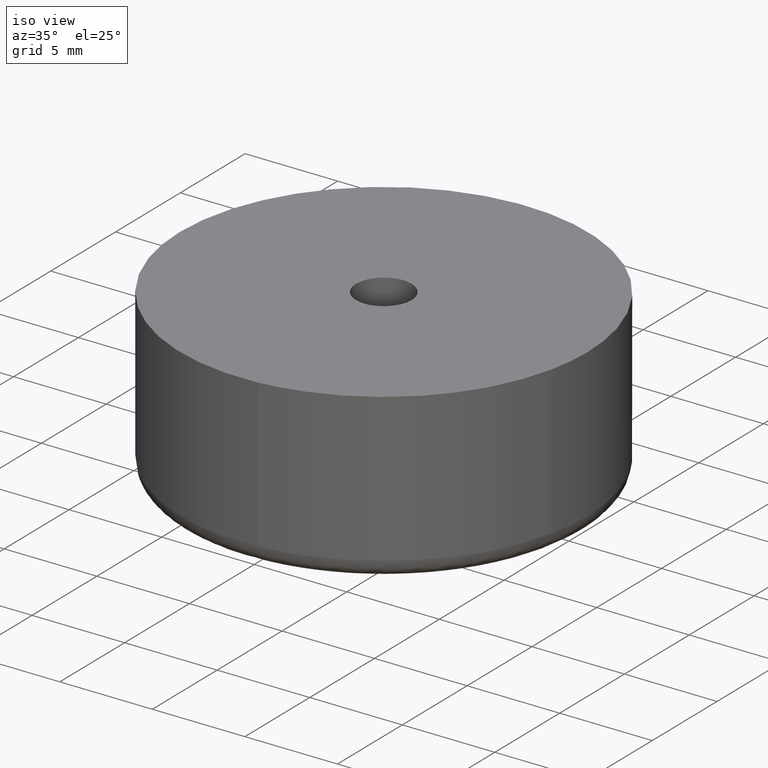
[diagram: clean part render]
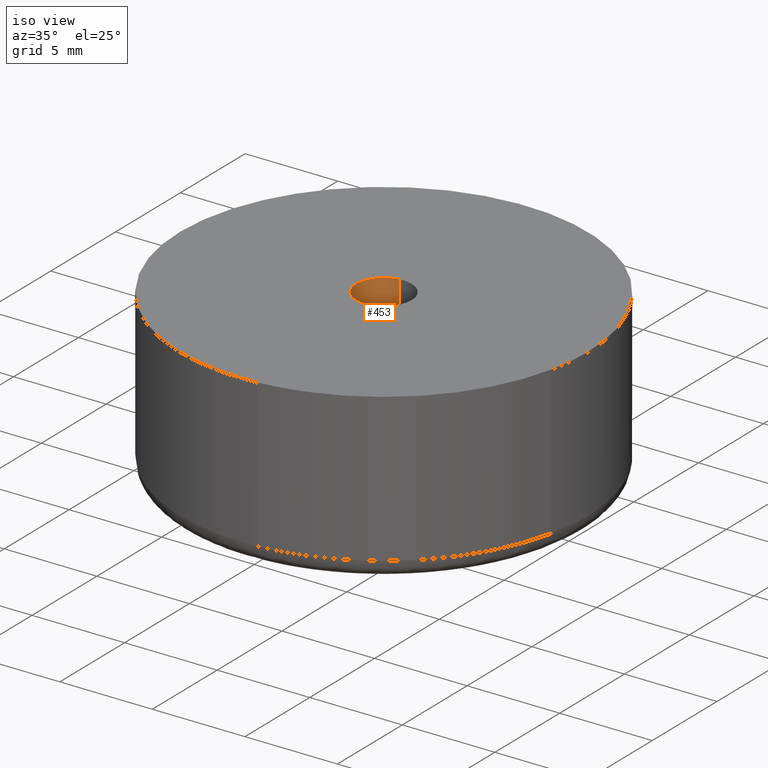
[diagram: same view with one face highlighted and labeled with its STEP entity id]
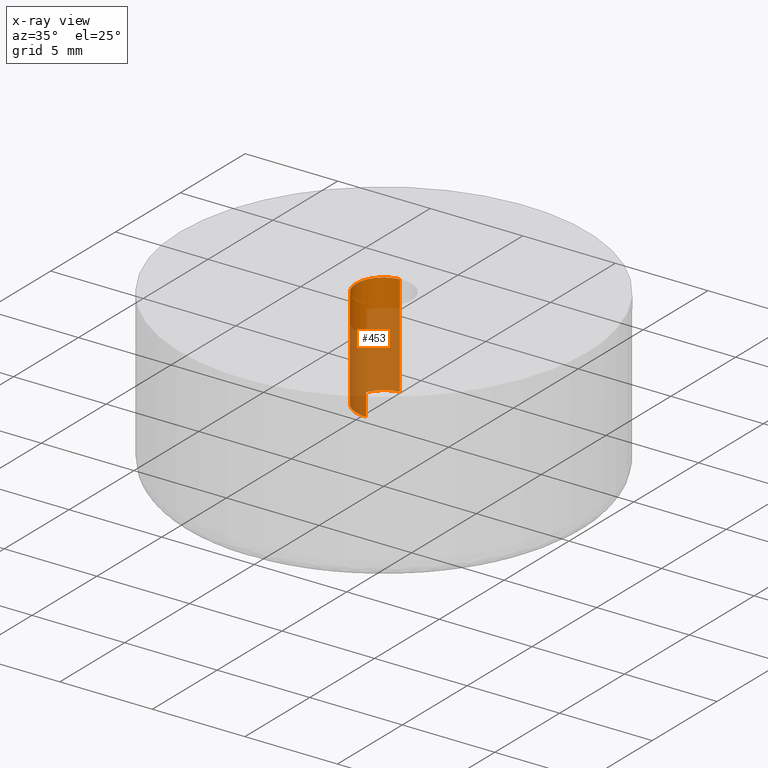
[diagram: x-ray of the same camera — body ghosted, the highlighted face saturated]
A machine part, iso view. The second image highlights one B-rep face of the part: STEP entity #453.
The next image is the same camera in x-ray: the body ghosted, the highlighted face saturated — about 70% of this face is hidden behind the body in this view.
In plain terms, the highlighted face is a freeform B-spline surface patch.
Its self-contained STEP definition (entity closure, byte-faithful):
#286=CARTESIAN_POINT('',(-0.177049153689293,1.489514550842993,8.999999999999917));
#287=VERTEX_POINT('',#286);
#305=CARTESIAN_POINT('',(-0.177049180233215,1.489514547687925,3.500000000000001));
#306=VERTEX_POINT('',#305);
#307=CARTESIAN_POINT('',(-0.177049153689293,1.489514550842993,8.999999999999917));
#308=CARTESIAN_POINT('',(-0.177049180233215,1.489514547687925,3.500000000000001));
#309=QUASI_UNIFORM_CURVE('',1,(#307,#308),.UNSPECIFIED.,.F.,.U.);
#310=EDGE_CURVE('',#287,#306,#309,.T.);
#329=CARTESIAN_POINT('',(0.091572809312635,-1.497202197632167,3.500000000000000));
#330=VERTEX_POINT('',#329);
#344=CARTESIAN_POINT('',(0.091572809312635,-1.497202197632167,8.999999999999901));
#345=VERTEX_POINT('',#344);
#346=CARTESIAN_POINT('',(0.091572809312635,-1.497202197632167,8.999999999999901));
#347=CARTESIAN_POINT('',(0.091572809312635,-1.497202197632167,3.500000000000000));
#348=QUASI_UNIFORM_CURVE('',1,(#346,#347),.UNSPECIFIED.,.F.,.U.);
#349=EDGE_CURVE('',#345,#330,#348,.T.);
#367=CARTESIAN_POINT('',(0.112204542655969,-1.495940306762643,9.137499999999898));
#368=CARTESIAN_POINT('',(0.101918201429846,-1.496569446343794,9.137499999999902));
#369=CARTESIAN_POINT('',(-1.405629388330515,-1.588775006935085,9.137499999999900));
#370=CARTESIAN_POINT('',(-1.497202197632800,-0.091572809302285,9.137499999999900));
#371=CARTESIAN_POINT('',(-1.583679295098791,1.322315236259252,9.137499999999900));
#372=CARTESIAN_POINT('',(-0.166519371512230,1.490766175072813,9.137499999999902));
#373=CARTESIAN_POINT('',(-0.156043995274049,1.492011332328800,9.137499999999902));
#374=CARTESIAN_POINT('',(0.112204542655969,-1.495940306762643,3.359062500000003));
#375=CARTESIAN_POINT('',(0.101918201429846,-1.496569446343794,3.359062500000004));
#376=CARTESIAN_POINT('',(-1.405629388330515,-1.588775006935085,3.359062500000004));
#377=CARTESIAN_POINT('',(-1.497202197632800,-0.091572809302285,3.359062500000003));
#378=CARTESIAN_POINT('',(-1.583679295098791,1.322315236259252,3.359062500000004));
#379=CARTESIAN_POINT('',(-0.166519371512230,1.490766175072813,3.359062500000003));
#380=CARTESIAN_POINT('',(-0.156043995274049,1.492011332328800,3.359062500000002));
#388=(BOUNDED_SURFACE()B_SPLINE_SURFACE(2,1,((#367,#374),(#368,#375),(#369,#376),(#370,#377),(#371,#378),(#372,#379),(#373,#380)),.UNSPECIFIED.,.F.,.F.,.U.)B_SPLINE_SURFACE_WITH_KNOTS((3,1,2,1,3),(2,2),(0.0,0.024355769611618,2.509637143850187,4.895507263119215,4.919865567971703),(0.0,5.778437499999900),.UNSPECIFIED.)GEOMETRIC_REPRESENTATION_ITEM()RATIONAL_B_SPLINE_SURFACE(((1.005740709951131,1.005740709951131),(1.002870354975565,1.002870354975565),(0.707106781186548,0.707106781186548),(1.0,1.0),(0.718822509939086,0.718822509939086),(0.980146802251169,0.980146802251169),(0.982787803707211,0.982787803707211)))REPRESENTATION_ITEM('')SURFACE());
#389=CARTESIAN_POINT('',(-1.500000000000000,0.0,8.999999999999901));
#390=VERTEX_POINT('',#389);
#391=CARTESIAN_POINT('',(-1.500000000000000,0.0,8.999999999999901));
#392=CARTESIAN_POINT('',(-1.500000000000001,1.332263768984680,8.999999999999901));
#393=CARTESIAN_POINT('',(-0.177049153689293,1.489514550842993,8.999999999999917));
#401=(BOUNDED_CURVE()B_SPLINE_CURVE(2,(#391,#392,#393),.UNSPECIFIED.,.F.,.U.)B_SPLINE_CURVE_WITH_KNOTS((3,3),(0.0,0.229562722938678),.UNSPECIFIED.)CURVE()GEOMETRIC_REPRESENTATION_ITEM()RATIONAL_B_SPLINE_CURVE((1.0,0.731050540635640,0.956027243067822))REPRESENTATION_ITEM(''));
#402=EDGE_CURVE('',#390,#287,#401,.T.);
#403=ORIENTED_EDGE('',*,*,#402,.F.);
#404=CARTESIAN_POINT('',(0.091572809312635,-1.497202197632167,8.999999999999901));
#405=CARTESIAN_POINT('',(0.045829144958262,-1.500000000000001,8.999999999999901));
#406=CARTESIAN_POINT('',(0.0,-1.500000000000000,8.999999999999901));
#407=CARTESIAN_POINT('',(-1.500000000000000,-1.500000000000000,8.999999999999901));
#408=CARTESIAN_POINT('',(-1.500000000000000,0.0,8.999999999999901));
#416=(BOUNDED_CURVE()B_SPLINE_CURVE(2,(#404,#405,#406,#407,#408),.UNSPECIFIED.,.F.,.U.)B_SPLINE_CURVE_WITH_KNOTS((3,2,3),(0.739332962239583,0.750000000000000,1.0),.UNSPECIFIED.)CURVE()GEOMETRIC_REPRESENTATION_ITEM()RATIONAL_B_SPLINE_CURVE((0.976072041668089,0.987502787900587,1.0,0.707106781186548,1.0))REPRESENTATION_ITEM(''));
#417=EDGE_CURVE('',#345,#390,#416,.T.);
#418=ORIENTED_EDGE('',*,*,#417,.F.);
#419=ORIENTED_EDGE('',*,*,#349,.T.);
#420=CARTESIAN_POINT('',(-1.500000000000000,0.0,3.500000000000000));
#421=VERTEX_POINT('',#420);
#422=CARTESIAN_POINT('',(0.091572809312635,-1.497202197632167,3.500000000000000));
#423=CARTESIAN_POINT('',(0.045829144958262,-1.500000000000001,3.500000000000000));
#424=CARTESIAN_POINT('',(0.0,-1.500000000000000,3.500000000000000));
#425=CARTESIAN_POINT('',(-1.500000000000000,-1.500000000000000,3.499999999999999));
#426=CARTESIAN_POINT('',(-1.500000000000000,0.0,3.500000000000000));
#434=(BOUNDED_CURVE()B_SPLINE_CURVE(2,(#422,#423,#424,#425,#426),.UNSPECIFIED.,.F.,.U.)B_SPLINE_CURVE_WITH_KNOTS((3,2,3),(0.739332962239583,0.750000000000000,1.0),.UNSPECIFIED.)CURVE()GEOMETRIC_REPRESENTATION_ITEM()RATIONAL_B_SPLINE_CURVE((0.976072041668089,0.987502787900587,1.0,0.707106781186548,1.0))REPRESENTATION_ITEM(''));
#435=EDGE_CURVE('',#330,#421,#434,.T.);
#436=ORIENTED_EDGE('',*,*,#435,.T.);
#437=CARTESIAN_POINT('',(-1.500000000000000,0.0,3.500000000000000));
#438=CARTESIAN_POINT('',(-1.500000000000000,1.332263745075924,3.500000000000000));
#439=CARTESIAN_POINT('',(-0.177049180233215,1.489514547687925,3.500000000000000));
#447=(BOUNDED_CURVE()B_SPLINE_CURVE(2,(#437,#438,#439),.UNSPECIFIED.,.F.,.U.)B_SPLINE_CURVE_WITH_KNOTS((3,3),(0.0,0.229562719926951),.UNSPECIFIED.)CURVE()GEOMETRIC_REPRESENTATION_ITEM()RATIONAL_B_SPLINE_CURVE((1.0,0.731050544164097,0.956027237164700))REPRESENTATION_ITEM(''));
#448=EDGE_CURVE('',#421,#306,#447,.T.);
#449=ORIENTED_EDGE('',*,*,#448,.T.);
#450=ORIENTED_EDGE('',*,*,#310,.F.);
#451=EDGE_LOOP('',(#403,#418,#419,#436,#449,#450));
#452=FACE_OUTER_BOUND('',#451,.T.);
#453=ADVANCED_FACE('',(#452),#388,.F.);